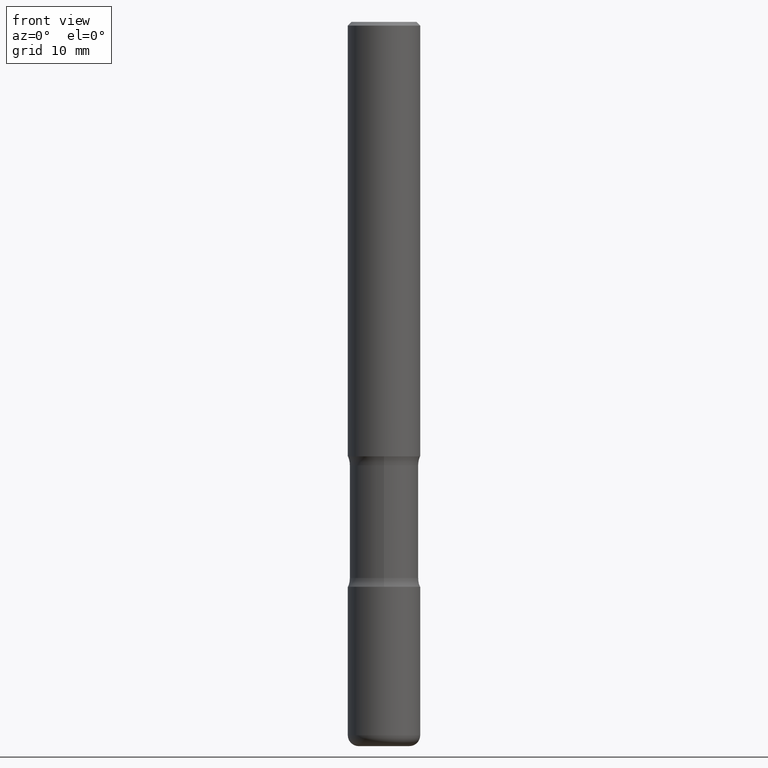
[diagram: clean part render]
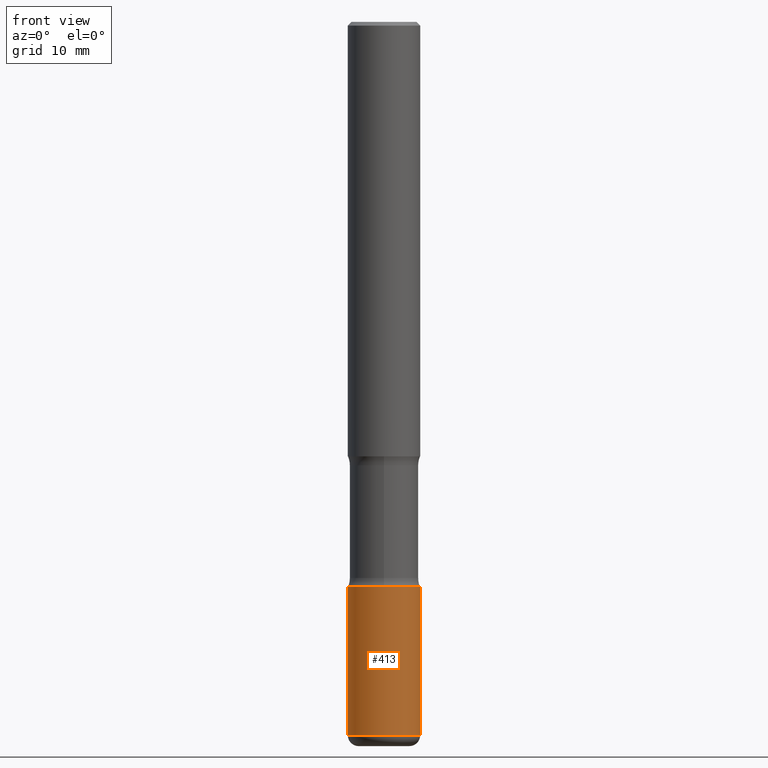
[diagram: same view with one face highlighted and labeled with its STEP entity id]
A machine part, front view. The second image highlights one B-rep face of the part: STEP entity #413.
In plain terms, the highlighted cylindrical surface (edge-blend (fillet) strip) has radius 5 mm, axis along (-0, 0, 1).
Its self-contained STEP definition (entity closure, byte-faithful):
#5 = EDGE_CURVE ( 'NONE', #274, #506, #523, .T. ) ;
#38 = ORIENTED_EDGE ( 'NONE', *, *, #5, .T. ) ;
#42 = FACE_OUTER_BOUND ( 'NONE', #175, .T. ) ;
#43 = EDGE_CURVE ( 'NONE', #274, #53, #230, .T. ) ;
#53 = VERTEX_POINT ( 'NONE', #356 ) ;
#57 = VECTOR ( 'NONE', #79, 39.37007874015748143 ) ;
#79 = DIRECTION ( 'NONE',  ( -2.445468806185136877E-29, 3.491481338843145188E-15, 1.000000000000000000 ) ) ;
#103 = DIRECTION ( 'NONE',  ( -2.445468806185136597E-29, 3.491481338843145583E-15, 1.000000000000000000 ) ) ;
#106 = EDGE_CURVE ( 'NONE', #53, #375, #181, .T. ) ;
#127 = DIRECTION ( 'NONE',  ( 1.000000000000000000, -6.982962677686266711E-15, 4.876176775795935793E-29 ) ) ;
#175 = EDGE_LOOP ( 'NONE', ( #253, #38, #325, #480 ) ) ;
#181 = CIRCLE ( 'NONE', #292, 0.1968500000000001915 ) ;
#187 = DIRECTION ( 'NONE',  ( 1.000000000000000000, -6.982962677686272233E-15, 0.000000000000000000 ) ) ;
#205 = DIRECTION ( 'NONE',  ( -2.445468806185136597E-29, 3.491481338843145583E-15, 1.000000000000000000 ) ) ;
#211 = CARTESIAN_POINT ( 'NONE',  ( 0.1968500000000004690, -1.491421168700237936E-14, -3.877899999999999459 ) ) ;
#213 = DIRECTION ( 'NONE',  ( 1.000000000000000000, -6.982962677686266711E-15, 0.000000000000000000 ) ) ;
#230 = LINE ( 'NONE', #283, #299 ) ;
#245 = LINE ( 'NONE', #296, #57 ) ;
#253 = ORIENTED_EDGE ( 'NONE', *, *, #43, .F. ) ;
#254 = CARTESIAN_POINT ( 'NONE',  ( 0.000000000000000000, 0.000000000000000000, 0.000000000000000000 ) ) ;
#274 = VERTEX_POINT ( 'NONE', #300 ) ;
#283 = CARTESIAN_POINT ( 'NONE',  ( -0.1968500000000002470, 1.398703375343758971E-15, -9.682923725166793487E-30 ) ) ;
#292 = AXIS2_PLACEMENT_3D ( 'NONE', #442, #103, #187 ) ;
#296 = CARTESIAN_POINT ( 'NONE',  ( 0.1968500000000002470, -1.374596203102543383E-15, 9.598753983154312069E-30 ) ) ;
#299 = VECTOR ( 'NONE', #479, 39.37007874015748143 ) ;
#300 = CARTESIAN_POINT ( 'NONE',  ( -0.1968500000000004690, -1.214091210855607286E-14, -3.877899999999999459 ) ) ;
#323 = DIRECTION ( 'NONE',  ( -2.445468806185136597E-29, 3.491481338843145583E-15, 1.000000000000000000 ) ) ;
#325 = ORIENTED_EDGE ( 'NONE', *, *, #336, .T. ) ;
#336 = EDGE_CURVE ( 'NONE', #506, #375, #245, .T. ) ;
#356 = CARTESIAN_POINT ( 'NONE',  ( -0.1968500000000001915, -1.073209938833286663E-14, -3.070900000000000407 ) ) ;
#375 = VERTEX_POINT ( 'NONE', #466 ) ;
#377 = AXIS2_PLACEMENT_3D ( 'NONE', #254, #205, #127 ) ;
#387 = CARTESIAN_POINT ( 'NONE',  ( 9.483283483505340095E-29, -1.353961548389983302E-14, -3.877899999999999459 ) ) ;
#413 = ADVANCED_FACE ( 'NONE', ( #42 ), #468, .T. ) ;
#442 = CARTESIAN_POINT ( 'NONE',  ( 7.509790156913936305E-29, -1.072199004345341739E-14, -3.070900000000000407 ) ) ;
#466 = CARTESIAN_POINT ( 'NONE',  ( 0.1968500000000001915, -1.209658624655596058E-14, -3.070900000000000407 ) ) ;
#468 = CYLINDRICAL_SURFACE ( 'NONE', #377, 0.1968500000000002470 ) ;
#477 = AXIS2_PLACEMENT_3D ( 'NONE', #387, #323, #213 ) ;
#479 = DIRECTION ( 'NONE',  ( -2.445468806185136877E-29, 3.491481338843145188E-15, 1.000000000000000000 ) ) ;
#480 = ORIENTED_EDGE ( 'NONE', *, *, #106, .F. ) ;
#506 = VERTEX_POINT ( 'NONE', #211 ) ;
#523 = CIRCLE ( 'NONE', #477, 0.1968500000000003303 ) ;